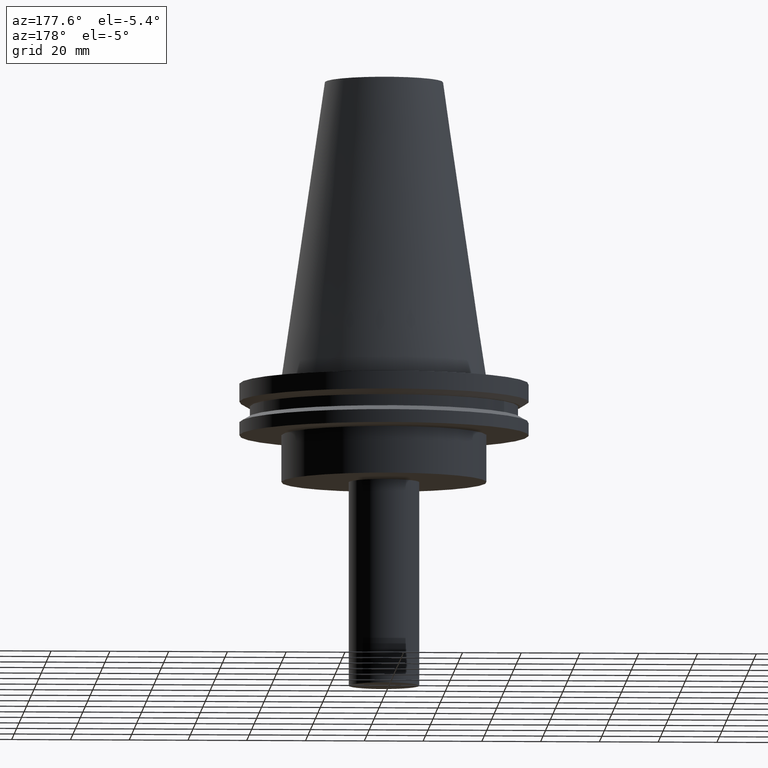
[diagram: clean part render]
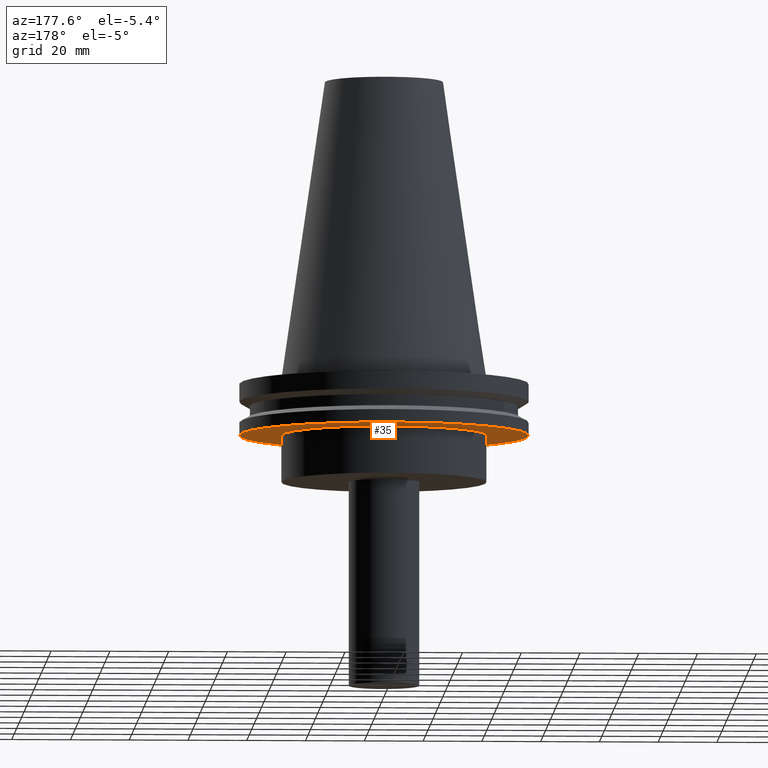
[diagram: same view with one face highlighted and labeled with its STEP entity id]
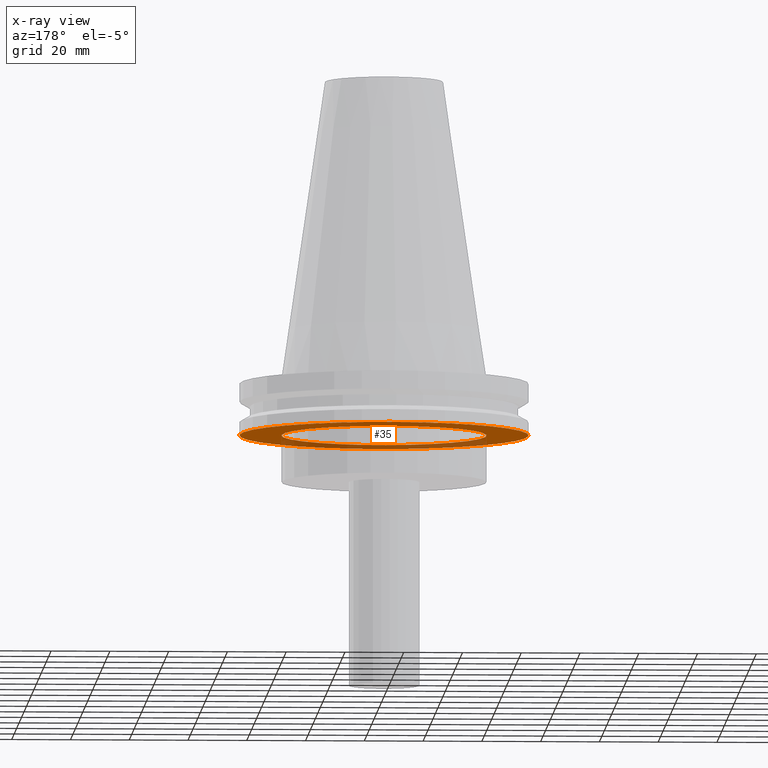
[diagram: x-ray of the same camera — body ghosted, the highlighted face saturated]
A machine part, auxiliary view. The second image highlights one B-rep face of the part: STEP entity #35.
The next image is the same camera in x-ray: the body ghosted, the highlighted face saturated — about 31% of this face is hidden behind the body in this view.
In plain terms, the highlighted planar face has unit normal (0, -0, 1).
Its self-contained STEP definition (entity closure, byte-faithful):
#23 = CIRCLE ( 'NONE', #167, 49.21499999999998920 ) ;
#24 = ORIENTED_EDGE ( 'NONE', *, *, #339, .F. ) ;
#30 = EDGE_LOOP ( 'NONE', ( #24 ) ) ;
#35 = ADVANCED_FACE ( 'NONE', ( #62, #238 ), #179, .F. ) ;
#49 = CARTESIAN_POINT ( 'NONE',  ( 0.000000000000000000, 0.000000000000000000, -19.04999999999999716 ) ) ;
#56 = ORIENTED_EDGE ( 'NONE', *, *, #361, .T. ) ;
#62 = FACE_OUTER_BOUND ( 'NONE', #30, .T. ) ;
#78 = CARTESIAN_POINT ( 'NONE',  ( 0.000000000000000000, 0.000000000000000000, -19.04999999999999716 ) ) ;
#92 = CARTESIAN_POINT ( 'NONE',  ( 49.21499999999998920, 0.000000000000000000, -19.04999999999999716 ) ) ;
#126 = AXIS2_PLACEMENT_3D ( 'NONE', #359, #210, #245 ) ;
#167 = AXIS2_PLACEMENT_3D ( 'NONE', #78, #349, #170 ) ;
#170 = DIRECTION ( 'NONE',  ( 1.000000000000000000, 0.000000000000000000, 0.000000000000000000 ) ) ;
#179 = PLANE ( 'NONE',  #126 ) ;
#210 = DIRECTION ( 'NONE',  ( 0.000000000000000000, -0.000000000000000000, 1.000000000000000000 ) ) ;
#232 = DIRECTION ( 'NONE',  ( 1.000000000000000000, 0.000000000000000000, 0.000000000000000000 ) ) ;
#238 = FACE_BOUND ( 'NONE', #271, .T. ) ;
#245 = DIRECTION ( 'NONE',  ( 1.000000000000000000, 0.000000000000000000, 0.000000000000000000 ) ) ;
#263 = AXIS2_PLACEMENT_3D ( 'NONE', #49, #293, #232 ) ;
#271 = EDGE_LOOP ( 'NONE', ( #56 ) ) ;
#293 = DIRECTION ( 'NONE',  ( -0.000000000000000000, -0.000000000000000000, 1.000000000000000000 ) ) ;
#296 = VERTEX_POINT ( 'NONE', #92 ) ;
#302 = CIRCLE ( 'NONE', #263, 34.92499999999999716 ) ;
#307 = CARTESIAN_POINT ( 'NONE',  ( 34.92499999999999716, 0.000000000000000000, -19.04999999999999716 ) ) ;
#334 = VERTEX_POINT ( 'NONE', #307 ) ;
#339 = EDGE_CURVE ( 'NONE', #296, #296, #23, .T. ) ;
#349 = DIRECTION ( 'NONE',  ( -0.000000000000000000, -0.000000000000000000, 1.000000000000000000 ) ) ;
#359 = CARTESIAN_POINT ( 'NONE',  ( 0.000000000000000000, 49.21499999999998920, -19.04999999999999716 ) ) ;
#361 = EDGE_CURVE ( 'NONE', #334, #334, #302, .T. ) ;